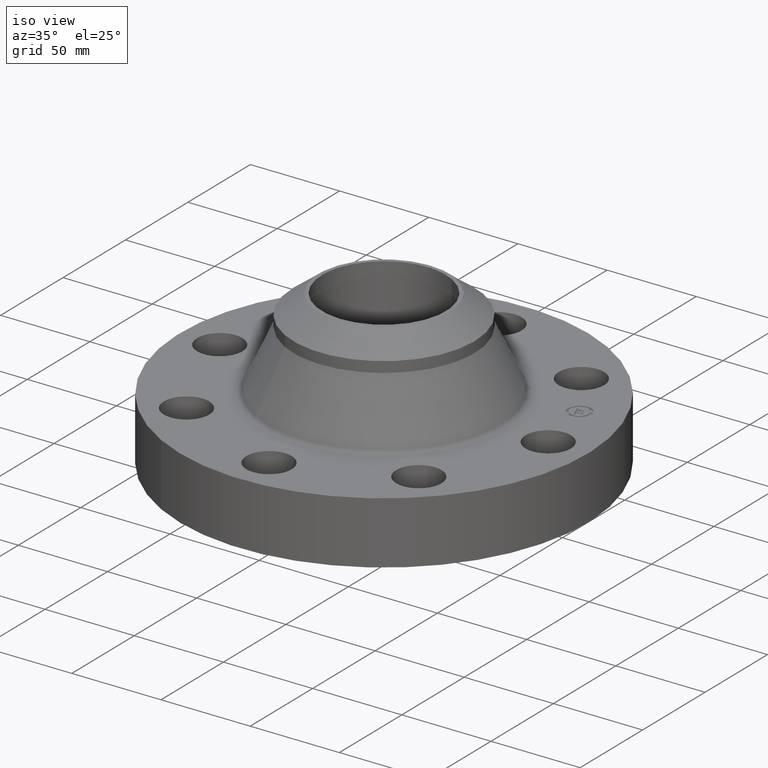
[diagram: clean part render]
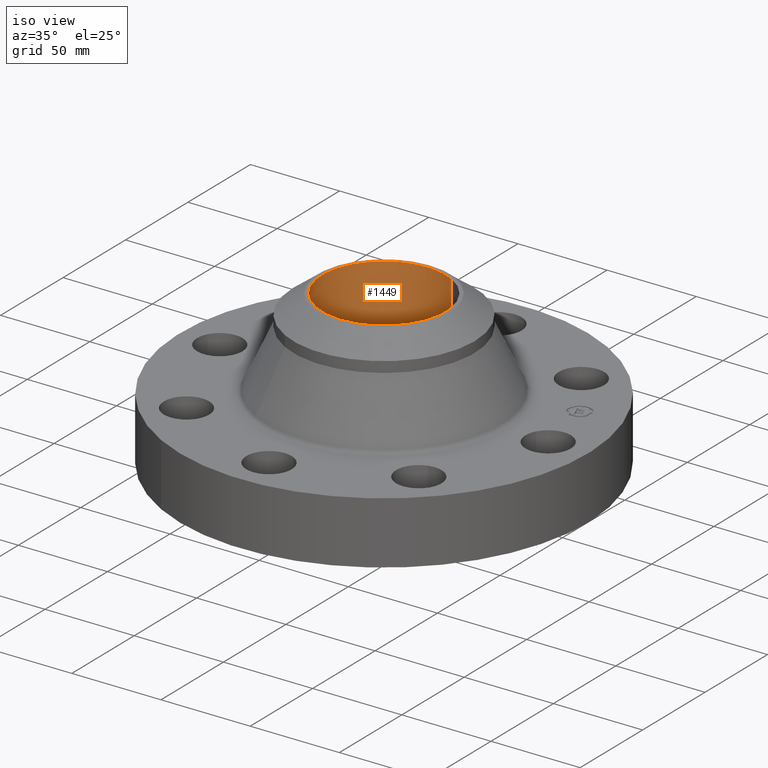
[diagram: same view with one face highlighted and labeled with its STEP entity id]
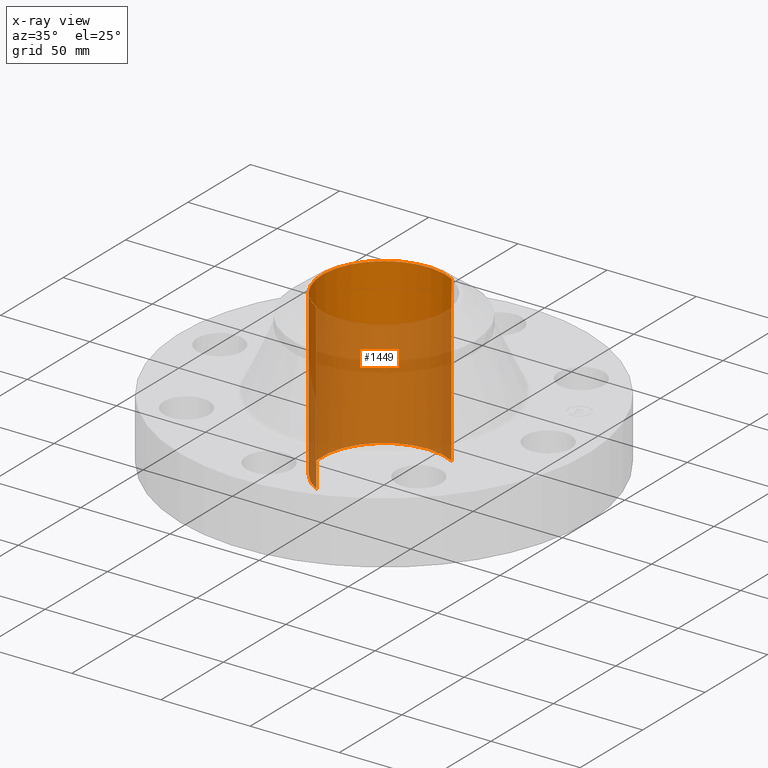
[diagram: x-ray of the same camera — body ghosted, the highlighted face saturated]
A machine part, iso view. The second image highlights one B-rep face of the part: STEP entity #1449.
The next image is the same camera in x-ray: the body ghosted, the highlighted face saturated — about 70% of this face is hidden behind the body in this view.
In plain terms, the highlighted cylindrical surface (partial cylindrical patch) has radius 34.6456 mm, axis along (-0, 0, -1).
Its self-contained STEP definition (entity closure, byte-faithful):
#1127=AXIS2_PLACEMENT_3D('Circle Axis2P3D',#1125,#1126,$) ;
#1424=AXIS2_PLACEMENT_3D('Cylinder Axis2P3D',#1421,#1422,#1423) ;
#1120=CARTESIAN_POINT('Vertex',(0.653936434662,1.19702261443,-0.249999999982)) ;
#1122=CARTESIAN_POINT('Vertex',(-0.653936434661,-1.19702261443,-0.249999999982)) ;
#1125=CARTESIAN_POINT('Axis2P3D Location',(-1.39870617276E-016,-5.60489537547E-012,-0.250000000001)) ;
#1392=CARTESIAN_POINT('Vertex',(0.653936434661,1.19702261443,3.38)) ;
#1394=CARTESIAN_POINT('Vertex',(-0.653936434661,-1.19702261443,3.38)) ;
#1397=CARTESIAN_POINT('Line Origine',(0.653936434661,1.19702261443,1.56500000001)) ;
#1402=CARTESIAN_POINT('Line Origine',(-0.653936434661,-1.19702261443,1.56500000001)) ;
#1421=CARTESIAN_POINT('Axis2P3D Location',(0.,0.,1.56500000001)) ;
#1427=CARTESIAN_POINT('Control Point',(-0.653936434662,-1.19702261443,3.38)) ;
#1428=CARTESIAN_POINT('Control Point',(-0.841964307246,-1.09430251947,3.38)) ;
#1429=CARTESIAN_POINT('Control Point',(-1.00982313635,-0.954663238073,3.38)) ;
#1430=CARTESIAN_POINT('Control Point',(-1.1478148047,-0.783355499722,3.38)) ;
#1431=CARTESIAN_POINT('Control Point',(-1.34919316982,-0.395864060159,3.38)) ;
#1432=CARTESIAN_POINT('Control Point',(-1.3891016369,0.0390039381201,3.38)) ;
#1433=CARTESIAN_POINT('Control Point',(-1.36554361788,0.257711646016,3.38000000001)) ;
#1434=CARTESIAN_POINT('Control Point',(-1.23394180088,0.674105478142,3.38000000001)) ;
#1435=CARTESIAN_POINT('Control Point',(-0.954663238073,1.00982313635,3.38000000001)) ;
#1436=CARTESIAN_POINT('Control Point',(-0.783355499723,1.1478148047,3.38000000001)) ;
#1437=CARTESIAN_POINT('Control Point',(-0.39586406016,1.34919316982,3.38000000001)) ;
#1438=CARTESIAN_POINT('Control Point',(0.0390039381195,1.3891016369,3.38000000001)) ;
#1439=CARTESIAN_POINT('Control Point',(0.257711646015,1.36554361788,3.38000000001)) ;
#1440=CARTESIAN_POINT('Control Point',(0.465908562078,1.29974270938,3.38000000001)) ;
#1441=CARTESIAN_POINT('Control Point',(0.653936434661,1.19702261443,3.38000000001)) ;
#1126=DIRECTION('Axis2P3D Direction',(0.,0.,-0.0393700787402)) ;
#1398=DIRECTION('Vector Direction',(0.,0.,-0.0393700787402)) ;
#1403=DIRECTION('Vector Direction',(0.,0.,-0.0393700787402)) ;
#1422=DIRECTION('Axis2P3D Direction',(-0.,0.,-0.0393700787402)) ;
#1423=DIRECTION('Axis2P3D XDirection',(-0.0188750212049,-0.0345504945626,0.)) ;
#1399=VECTOR('Line Direction',#1398,0.0393700787402) ;
#1404=VECTOR('Line Direction',#1403,0.0393700787402) ;
#1444=ORIENTED_EDGE('',*,*,#1442,.F.) ;
#1445=ORIENTED_EDGE('',*,*,#1406,.T.) ;
#1446=ORIENTED_EDGE('',*,*,#1129,.T.) ;
#1447=ORIENTED_EDGE('',*,*,#1401,.F.) ;
#1449=ADVANCED_FACE('PartBody',(#1448),#1425,.F.) ;
#1426=B_SPLINE_CURVE_WITH_KNOTS('',5,(#1427,#1428,#1429,#1430,#1431,#1432,#1433,#1434,#1435,#1436,#1437,#1438,#1439,#1440,#1441),.UNSPECIFIED.,.F.,.U.,(6,3,3,3,6),(-54.42118122,-27.21059061,3.5527136788E-015,27.21059061,54.42118122),.UNSPECIFIED.) ;
#1128=CIRCLE('generated circle',#1127,1.364) ;
#1425=CYLINDRICAL_SURFACE('generated cylinder',#1424,1.36400000001) ;
#1129=EDGE_CURVE('',#1123,#1121,#1128,.T.) ;
#1401=EDGE_CURVE('',#1393,#1121,#1400,.T.) ;
#1406=EDGE_CURVE('',#1395,#1123,#1405,.T.) ;
#1442=EDGE_CURVE('',#1395,#1393,#1426,.T.) ;
#1443=EDGE_LOOP('',(#1444,#1445,#1446,#1447)) ;
#1448=FACE_OUTER_BOUND('',#1443,.T.) ;
#1400=LINE('Line',#1397,#1399) ;
#1405=LINE('Line',#1402,#1404) ;
#1121=VERTEX_POINT('',#1120) ;
#1123=VERTEX_POINT('',#1122) ;
#1393=VERTEX_POINT('',#1392) ;
#1395=VERTEX_POINT('',#1394) ;